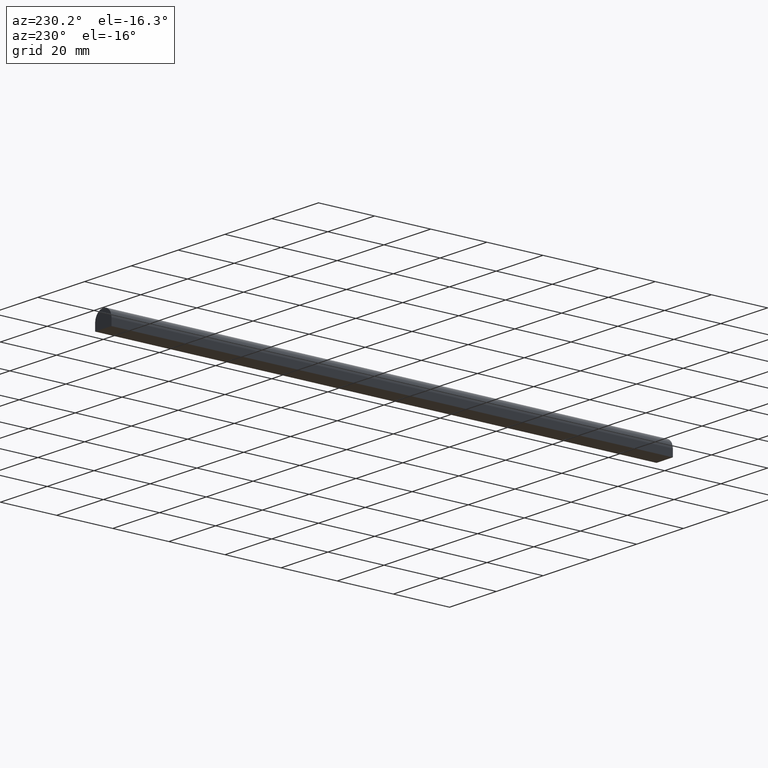
[diagram: clean part render]
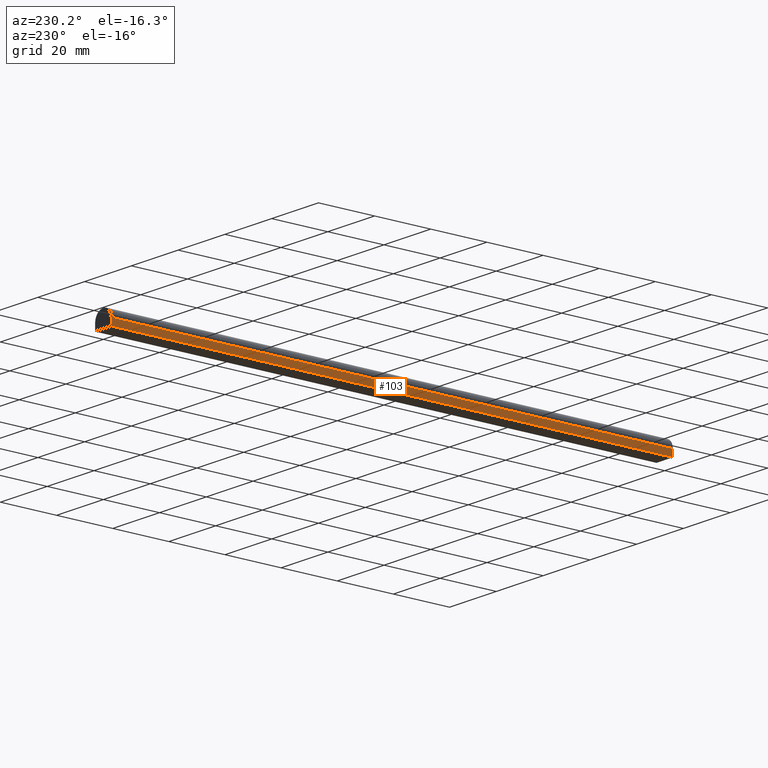
[diagram: same view with one face highlighted and labeled with its STEP entity id]
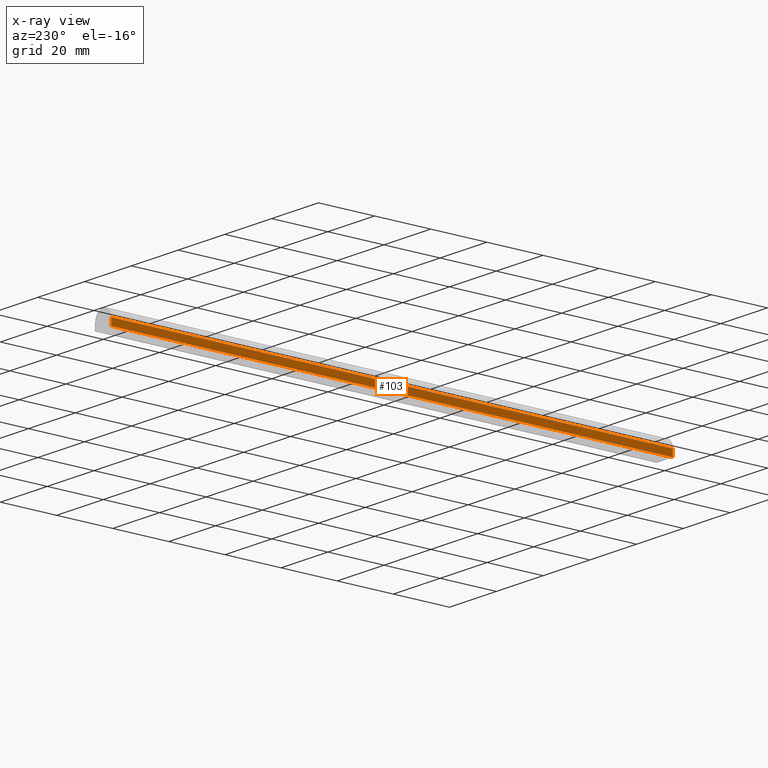
[diagram: x-ray of the same camera — body ghosted, the highlighted face saturated]
A machine part, auxiliary view. The second image highlights one B-rep face of the part: STEP entity #103.
The next image is the same camera in x-ray: the body ghosted, the highlighted face saturated — about 0% of this face is hidden behind the body in this view.
In plain terms, the highlighted planar face has unit normal (-1, 0, 0).
Its self-contained STEP definition (entity closure, byte-faithful):
#3 = DIRECTION ( 'NONE',  ( -0.0000000000000000000, -0.0000000000000000000, -1.000000000000000000 ) ) ;
#6 = EDGE_CURVE ( 'NONE', #213, #72, #189, .T. ) ;
#10 = LINE ( 'NONE', #111, #36 ) ;
#18 = LINE ( 'NONE', #165, #112 ) ;
#26 = CARTESIAN_POINT ( 'NONE',  ( -3.500000000000000000, 0.0000000000000000000, -0.5000000000000000000 ) ) ;
#29 = EDGE_CURVE ( 'NONE', #213, #149, #10, .T. ) ;
#34 = DIRECTION ( 'NONE',  ( 0.0000000000000000000, -1.000000000000000000, 0.0000000000000000000 ) ) ;
#36 = VECTOR ( 'NONE', #133, 1000.000000000000000 ) ;
#38 = CARTESIAN_POINT ( 'NONE',  ( -3.500000000000000000, 200.0000000000000000, -3.000000000000000000 ) ) ;
#41 = CARTESIAN_POINT ( 'NONE',  ( -3.500000000000000000, 1000.000000000000000, -0.5000000000000000000 ) ) ;
#60 = PLANE ( 'NONE',  #108 ) ;
#68 = VECTOR ( 'NONE', #3, 1000.000000000000000 ) ;
#72 = VERTEX_POINT ( 'NONE', #26 ) ;
#97 = ORIENTED_EDGE ( 'NONE', *, *, #194, .T. ) ;
#103 = ADVANCED_FACE ( 'NONE', ( #192 ), #60, .T. ) ;
#105 = ORIENTED_EDGE ( 'NONE', *, *, #114, .F. ) ;
#108 = AXIS2_PLACEMENT_3D ( 'NONE', #41, #166, #175 ) ;
#111 = CARTESIAN_POINT ( 'NONE',  ( -3.500000000000000000, 200.0000000000000000, 0.0000000000000000000 ) ) ;
#112 = VECTOR ( 'NONE', #34, 1000.000000000000000 ) ;
#114 = EDGE_CURVE ( 'NONE', #72, #124, #129, .T. ) ;
#124 = VERTEX_POINT ( 'NONE', #230 ) ;
#126 = VECTOR ( 'NONE', #158, 1000.000000000000000 ) ;
#129 = LINE ( 'NONE', #233, #68 ) ;
#133 = DIRECTION ( 'NONE',  ( -0.0000000000000000000, -0.0000000000000000000, -1.000000000000000000 ) ) ;
#149 = VERTEX_POINT ( 'NONE', #38 ) ;
#150 = ORIENTED_EDGE ( 'NONE', *, *, #6, .F. ) ;
#158 = DIRECTION ( 'NONE',  ( 0.0000000000000000000, -1.000000000000000000, 0.0000000000000000000 ) ) ;
#164 = ORIENTED_EDGE ( 'NONE', *, *, #29, .T. ) ;
#165 = CARTESIAN_POINT ( 'NONE',  ( -3.500000000000000000, 1000.000000000000000, -3.000000000000000000 ) ) ;
#166 = DIRECTION ( 'NONE',  ( -1.000000000000000000, 0.0000000000000000000, 0.0000000000000000000 ) ) ;
#172 = CARTESIAN_POINT ( 'NONE',  ( -3.500000000000000000, 1000.000000000000000, -0.5000000000000000000 ) ) ;
#175 = DIRECTION ( 'NONE',  ( 0.0000000000000000000, 0.0000000000000000000, 1.000000000000000000 ) ) ;
#189 = LINE ( 'NONE', #172, #126 ) ;
#192 = FACE_OUTER_BOUND ( 'NONE', #208, .T. ) ;
#194 = EDGE_CURVE ( 'NONE', #149, #124, #18, .T. ) ;
#202 = CARTESIAN_POINT ( 'NONE',  ( -3.500000000000000000, 200.0000000000000000, -0.5000000000000000000 ) ) ;
#208 = EDGE_LOOP ( 'NONE', ( #105, #150, #164, #97 ) ) ;
#213 = VERTEX_POINT ( 'NONE', #202 ) ;
#230 = CARTESIAN_POINT ( 'NONE',  ( -3.500000000000000000, 0.0000000000000000000, -3.000000000000000000 ) ) ;
#233 = CARTESIAN_POINT ( 'NONE',  ( -3.500000000000000000, 0.0000000000000000000, 0.0000000000000000000 ) ) ;